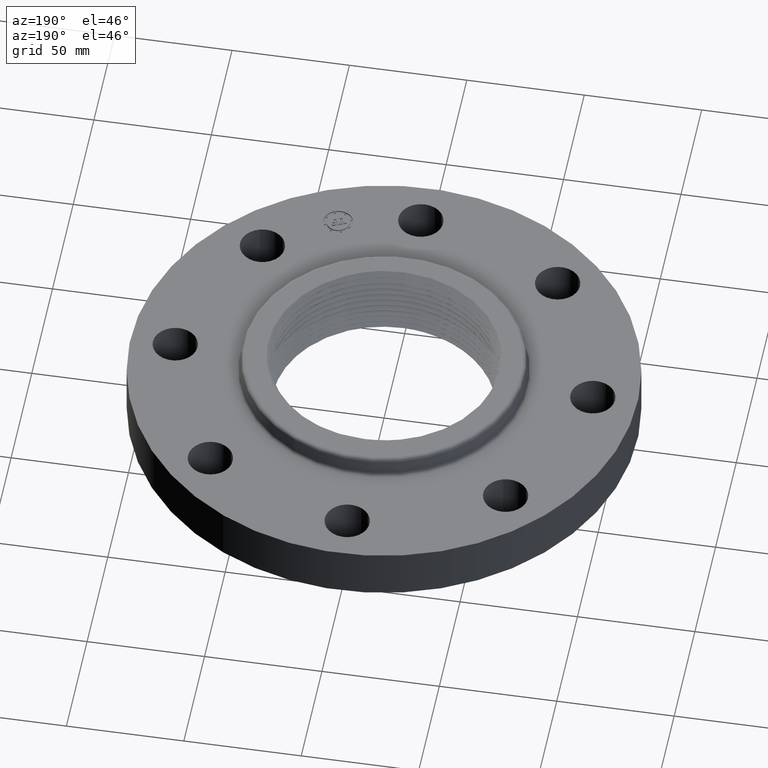
[diagram: clean part render]
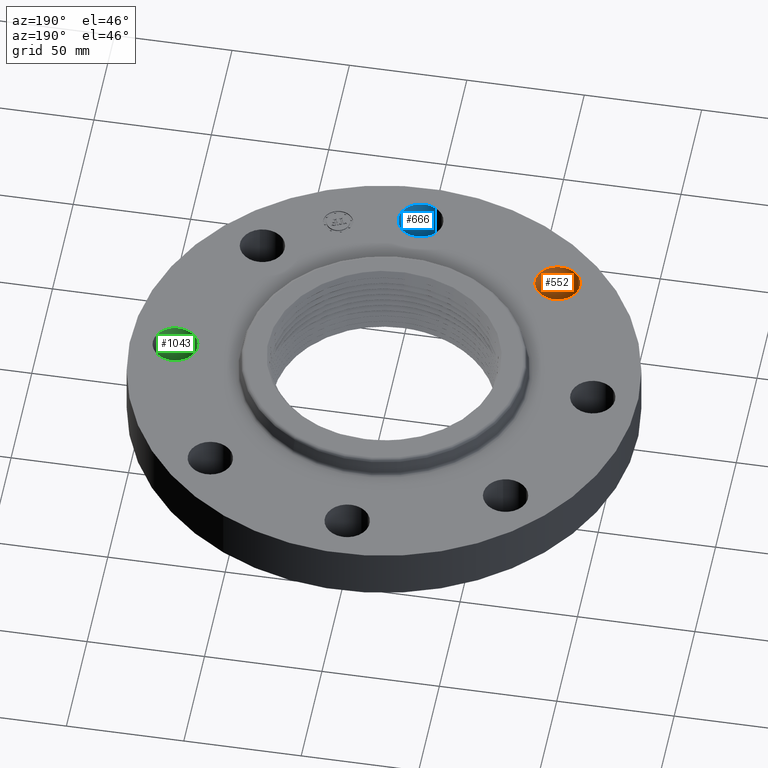
[diagram: same view with three faces highlighted in distinct colors, each labeled with its STEP entity id]
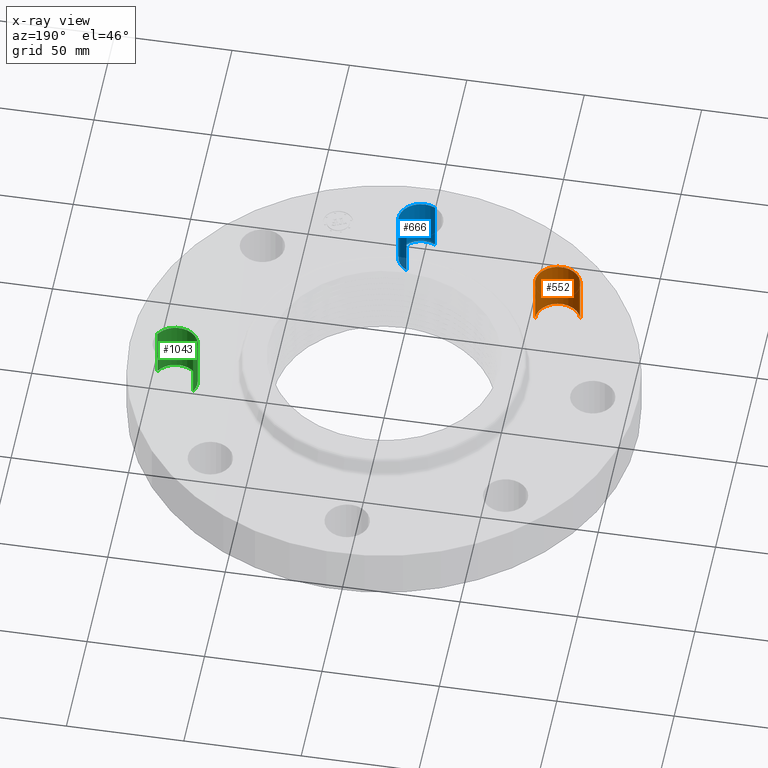
[diagram: x-ray of the same camera — body ghosted, the three highlighted faces saturated]
A machine part, auxiliary view with three faces highlighted in distinct colors.
The next image is the same camera in x-ray (body ghosted, the three faces saturated) — at least one of them is partly hidden behind the body in this view.
Their STEP definitions:

[orange] entity #552 — the highlighted cylindrical surface (edge-blend (fillet) strip) has radius 9.525 mm, axis along (-0, 0, -1).
#499=AXIS2_PLACEMENT_3D('Cylinder Axis2P3D',#496,#497,#498) ;
#538=AXIS2_PLACEMENT_3D('Circle Axis2P3D',#536,#537,$) ;
#543=AXIS2_PLACEMENT_3D('Circle Axis2P3D',#541,#542,$) ;
#496=CARTESIAN_POINT('Axis2P3D Location',(-2.47487373416,-2.47487373416,0.87606299213)) ;
#501=CARTESIAN_POINT('Line Origine',(-2.83470484541,-2.58045105834,0.440000000002)) ;
#505=CARTESIAN_POINT('Vertex',(-2.83470484541,-2.58045105834,0.)) ;
#507=CARTESIAN_POINT('Vertex',(-2.83470484541,-2.58045105834,0.880000000004)) ;
#514=CARTESIAN_POINT('Vertex',(-2.11504262292,-2.36929640998,0.)) ;
#517=CARTESIAN_POINT('Line Origine',(-2.11504262292,-2.36929640998,0.440000000002)) ;
#521=CARTESIAN_POINT('Vertex',(-2.11504262292,-2.36929640998,0.880000000004)) ;
#536=CARTESIAN_POINT('Axis2P3D Location',(-2.47487373416,-2.47487373416,0.)) ;
#541=CARTESIAN_POINT('Axis2P3D Location',(-2.47487373416,-2.47487373416,0.880000000004)) ;
#497=DIRECTION('Axis2P3D Direction',(-0.,0.,-0.0393700787402)) ;
#498=DIRECTION('Axis2P3D XDirection',(0.0377775444876,0.0110842335096,-0.)) ;
#502=DIRECTION('Vector Direction',(0.,0.,-0.0393700787402)) ;
#518=DIRECTION('Vector Direction',(0.,0.,-0.0393700787402)) ;
#537=DIRECTION('Axis2P3D Direction',(-0.,0.,-0.0393700787402)) ;
#542=DIRECTION('Axis2P3D Direction',(-0.,0.,-0.0393700787402)) ;
#503=VECTOR('Line Direction',#502,0.0393700787402) ;
#519=VECTOR('Line Direction',#518,0.0393700787402) ;
#547=ORIENTED_EDGE('',*,*,#523,.F.) ;
#548=ORIENTED_EDGE('',*,*,#540,.T.) ;
#549=ORIENTED_EDGE('',*,*,#509,.T.) ;
#550=ORIENTED_EDGE('',*,*,#545,.F.) ;
#552=ADVANCED_FACE('PartBody',(#551),#500,.F.) ;
#539=CIRCLE('generated circle',#538,0.375000000002) ;
#544=CIRCLE('generated circle',#543,0.375000000002) ;
#500=CYLINDRICAL_SURFACE('generated cylinder',#499,0.375000000002) ;
#509=EDGE_CURVE('',#506,#508,#504,.F.) ;
#523=EDGE_CURVE('',#515,#522,#520,.F.) ;
#540=EDGE_CURVE('',#515,#506,#539,.T.) ;
#545=EDGE_CURVE('',#522,#508,#544,.T.) ;
#546=EDGE_LOOP('',(#547,#548,#549,#550)) ;
#551=FACE_OUTER_BOUND('',#546,.T.) ;
#504=LINE('Line',#501,#503) ;
#520=LINE('Line',#517,#519) ;
#506=VERTEX_POINT('',#505) ;
#508=VERTEX_POINT('',#507) ;
#515=VERTEX_POINT('',#514) ;
#522=VERTEX_POINT('',#521) ;

[blue] entity #666 — the highlighted cylindrical surface (edge-blend (fillet) strip) has radius 9.525 mm, axis along (0, -0, -1).
#613=AXIS2_PLACEMENT_3D('Cylinder Axis2P3D',#610,#611,#612) ;
#652=AXIS2_PLACEMENT_3D('Circle Axis2P3D',#650,#651,$) ;
#657=AXIS2_PLACEMENT_3D('Circle Axis2P3D',#655,#656,$) ;
#610=CARTESIAN_POINT('Axis2P3D Location',(-3.45169279251E-016,-3.50000000001,0.87606299213)) ;
#615=CARTESIAN_POINT('Line Origine',(-0.179784576977,-3.82909346072,0.440000000002)) ;
#619=CARTESIAN_POINT('Vertex',(-0.179784576977,-3.82909346072,0.)) ;
#621=CARTESIAN_POINT('Vertex',(-0.179784576977,-3.82909346072,0.880000000004)) ;
#628=CARTESIAN_POINT('Vertex',(0.179784576977,-3.1709065393,0.)) ;
#631=CARTESIAN_POINT('Line Origine',(0.179784576977,-3.1709065393,0.440000000002)) ;
#635=CARTESIAN_POINT('Vertex',(0.179784576977,-3.1709065393,0.880000000004)) ;
#650=CARTESIAN_POINT('Axis2P3D Location',(-3.45169279251E-016,-3.50000000001,0.)) ;
#655=CARTESIAN_POINT('Axis2P3D Location',(-3.45169279251E-016,-3.50000000001,0.880000000004)) ;
#611=DIRECTION('Axis2P3D Direction',(0.,-0.,-0.0393700787402)) ;
#612=DIRECTION('Axis2P3D XDirection',(0.0188750212049,0.0345504945626,-0.)) ;
#616=DIRECTION('Vector Direction',(0.,0.,-0.0393700787402)) ;
#632=DIRECTION('Vector Direction',(0.,0.,-0.0393700787402)) ;
#651=DIRECTION('Axis2P3D Direction',(0.,-0.,-0.0393700787402)) ;
#656=DIRECTION('Axis2P3D Direction',(0.,-0.,-0.0393700787402)) ;
#617=VECTOR('Line Direction',#616,0.0393700787402) ;
#633=VECTOR('Line Direction',#632,0.0393700787402) ;
#661=ORIENTED_EDGE('',*,*,#637,.F.) ;
#662=ORIENTED_EDGE('',*,*,#654,.T.) ;
#663=ORIENTED_EDGE('',*,*,#623,.T.) ;
#664=ORIENTED_EDGE('',*,*,#659,.F.) ;
#666=ADVANCED_FACE('PartBody',(#665),#614,.F.) ;
#653=CIRCLE('generated circle',#652,0.375000000002) ;
#658=CIRCLE('generated circle',#657,0.375000000002) ;
#614=CYLINDRICAL_SURFACE('generated cylinder',#613,0.375000000002) ;
#623=EDGE_CURVE('',#620,#622,#618,.F.) ;
#637=EDGE_CURVE('',#629,#636,#634,.F.) ;
#654=EDGE_CURVE('',#629,#620,#653,.T.) ;
#659=EDGE_CURVE('',#636,#622,#658,.T.) ;
#660=EDGE_LOOP('',(#661,#662,#663,#664)) ;
#665=FACE_OUTER_BOUND('',#660,.T.) ;
#618=LINE('Line',#615,#617) ;
#634=LINE('Line',#631,#633) ;
#620=VERTEX_POINT('',#619) ;
#622=VERTEX_POINT('',#621) ;
#629=VERTEX_POINT('',#628) ;
#636=VERTEX_POINT('',#635) ;

[green] entity #1043 — the highlighted cylindrical surface (edge-blend (fillet) strip) has radius 9.525 mm, axis along (0, -0, -1).
#749=AXIS2_PLACEMENT_3D('Circle Axis2P3D',#747,#748,$) ;
#1016=AXIS2_PLACEMENT_3D('Cylinder Axis2P3D',#1013,#1014,#1015) ;
#1034=AXIS2_PLACEMENT_3D('Circle Axis2P3D',#1032,#1033,$) ;
#747=CARTESIAN_POINT('Axis2P3D Location',(3.50000000001,0.,0.)) ;
#751=CARTESIAN_POINT('Vertex',(3.82909346072,-0.179784576977,0.)) ;
#753=CARTESIAN_POINT('Vertex',(3.1709065393,0.179784576977,0.)) ;
#1013=CARTESIAN_POINT('Axis2P3D Location',(3.50000000001,0.,0.87606299213)) ;
#1018=CARTESIAN_POINT('Line Origine',(3.82909346072,-0.179784576977,0.440000000002)) ;
#1022=CARTESIAN_POINT('Vertex',(3.82909346072,-0.179784576977,0.880000000004)) ;
#1025=CARTESIAN_POINT('Line Origine',(3.1709065393,0.179784576977,0.440000000002)) ;
#1029=CARTESIAN_POINT('Vertex',(3.1709065393,0.179784576977,0.880000000004)) ;
#1032=CARTESIAN_POINT('Axis2P3D Location',(3.50000000001,0.,0.880000000004)) ;
#748=DIRECTION('Axis2P3D Direction',(0.,0.,-0.0393700787402)) ;
#1014=DIRECTION('Axis2P3D Direction',(0.,-0.,-0.0393700787402)) ;
#1015=DIRECTION('Axis2P3D XDirection',(-0.0345504945626,0.0188750212049,0.)) ;
#1019=DIRECTION('Vector Direction',(0.,0.,-0.0393700787402)) ;
#1026=DIRECTION('Vector Direction',(0.,0.,-0.0393700787402)) ;
#1033=DIRECTION('Axis2P3D Direction',(0.,-0.,-0.0393700787402)) ;
#1020=VECTOR('Line Direction',#1019,0.0393700787402) ;
#1027=VECTOR('Line Direction',#1026,0.0393700787402) ;
#1038=ORIENTED_EDGE('',*,*,#1024,.F.) ;
#1039=ORIENTED_EDGE('',*,*,#755,.T.) ;
#1040=ORIENTED_EDGE('',*,*,#1031,.T.) ;
#1041=ORIENTED_EDGE('',*,*,#1036,.F.) ;
#1043=ADVANCED_FACE('PartBody',(#1042),#1017,.F.) ;
#750=CIRCLE('generated circle',#749,0.375000000002) ;
#1035=CIRCLE('generated circle',#1034,0.375000000002) ;
#1017=CYLINDRICAL_SURFACE('generated cylinder',#1016,0.375000000002) ;
#755=EDGE_CURVE('',#752,#754,#750,.T.) ;
#1024=EDGE_CURVE('',#752,#1023,#1021,.F.) ;
#1031=EDGE_CURVE('',#754,#1030,#1028,.F.) ;
#1036=EDGE_CURVE('',#1023,#1030,#1035,.T.) ;
#1037=EDGE_LOOP('',(#1038,#1039,#1040,#1041)) ;
#1042=FACE_OUTER_BOUND('',#1037,.T.) ;
#1021=LINE('Line',#1018,#1020) ;
#1028=LINE('Line',#1025,#1027) ;
#752=VERTEX_POINT('',#751) ;
#754=VERTEX_POINT('',#753) ;
#1023=VERTEX_POINT('',#1022) ;
#1030=VERTEX_POINT('',#1029) ;